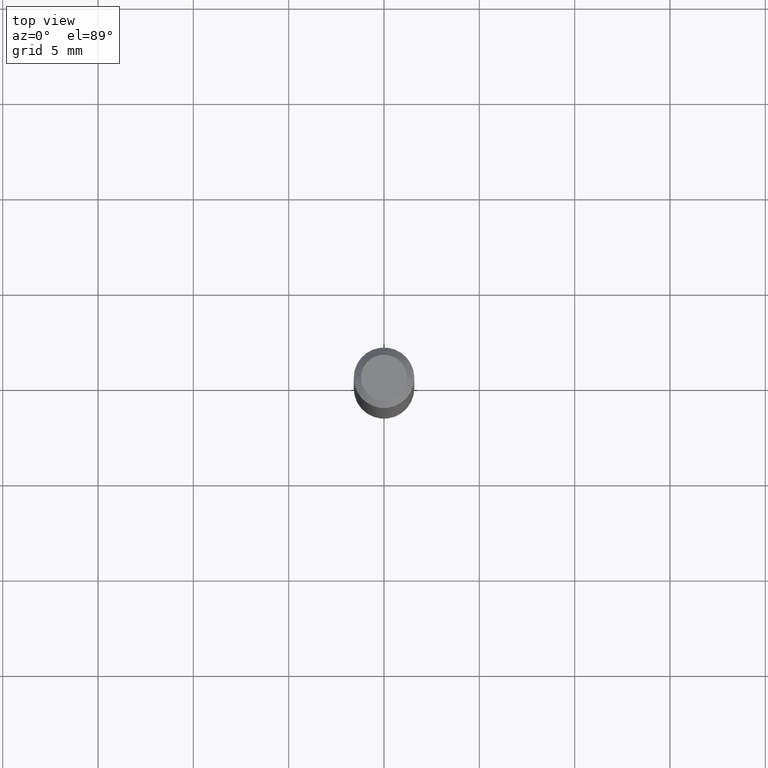
[diagram: clean part render]
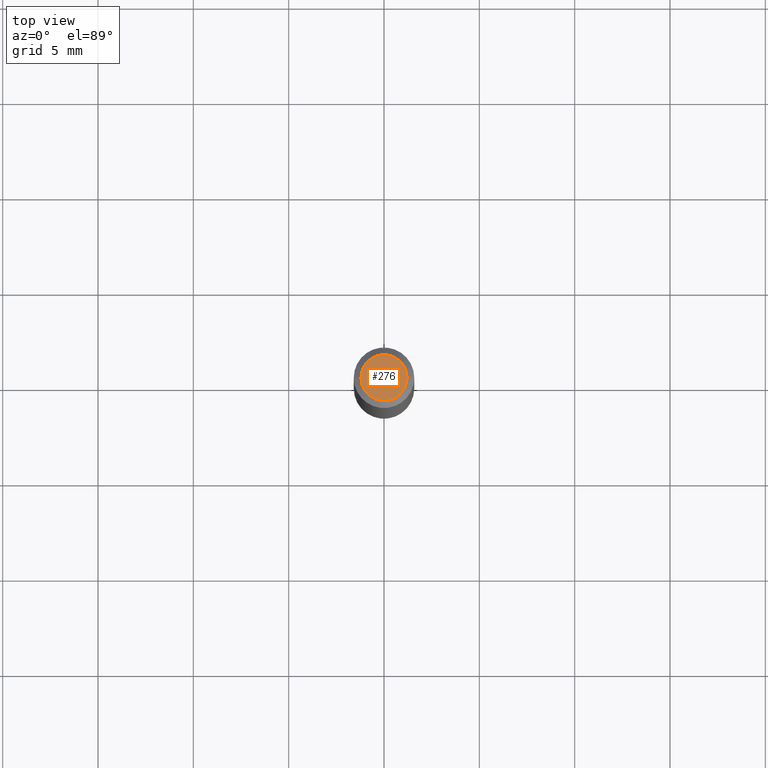
[diagram: same view with one face highlighted and labeled with its STEP entity id]
A machine part, top view. The second image highlights one B-rep face of the part: STEP entity #276.
In plain terms, the highlighted planar face has unit normal (0, -0, -1).
Its self-contained STEP definition (entity closure, byte-faithful):
#10 = DIRECTION ( 'NONE',  ( 1.000000000000000000, -6.982962677686267499E-15, 4.852736867747366768E-29 ) ) ;
#31 = VERTEX_POINT ( 'NONE', #287 ) ;
#32 = ORIENTED_EDGE ( 'NONE', *, *, #341, .T. ) ;
#33 = DIRECTION ( 'NONE',  ( -1.000000000000000000, 6.982962677686265922E-15, -4.876176775795935793E-29 ) ) ;
#50 = CARTESIAN_POINT ( 'NONE',  ( 1.338927666171699620E-44, -1.911633854693045944E-30, -5.475136966724958768E-16 ) ) ;
#87 = DIRECTION ( 'NONE',  ( -2.445468806185136597E-29, 3.491481338843145583E-15, 1.000000000000000000 ) ) ;
#113 = ORIENTED_EDGE ( 'NONE', *, *, #282, .T. ) ;
#114 = CARTESIAN_POINT ( 'NONE',  ( 1.338927666171699620E-44, -1.911633854693045944E-30, -5.475136966724958768E-16 ) ) ;
#121 = AXIS2_PLACEMENT_3D ( 'NONE', #50, #192, #10 ) ;
#146 = CARTESIAN_POINT ( 'NONE',  ( 3.316907271900976096E-16, 0.04749999999999999362, -4.396022119312973841E-16 ) ) ;
#192 = DIRECTION ( 'NONE',  ( -2.445468806185136597E-29, 3.491481338843145583E-15, 1.000000000000000000 ) ) ;
#193 = DIRECTION ( 'NONE',  ( 1.000000000000000000, -6.982962677686267499E-15, 4.852736867747366768E-29 ) ) ;
#225 = CIRCLE ( 'NONE', #269, 0.04749999999999999362 ) ;
#262 = AXIS2_PLACEMENT_3D ( 'NONE', #146, #294, #33 ) ;
#263 = FACE_OUTER_BOUND ( 'NONE', #370, .T. ) ;
#269 = AXIS2_PLACEMENT_3D ( 'NONE', #114, #87, #193 ) ;
#276 = ADVANCED_FACE ( 'NONE', ( #263 ), #357, .F. ) ;
#282 = EDGE_CURVE ( 'NONE', #31, #372, #285, .T. ) ;
#283 = CARTESIAN_POINT ( 'NONE',  ( 0.04749999999999999362, -4.035134999187587991E-16, -5.475136966724933130E-16 ) ) ;
#285 = CIRCLE ( 'NONE', #121, 0.04749999999999999362 ) ;
#287 = CARTESIAN_POINT ( 'NONE',  ( -0.04749999999999999362, 3.578768372314200645E-16, -5.475136966724983420E-16 ) ) ;
#294 = DIRECTION ( 'NONE',  ( 2.438088387897960049E-29, -3.491481338843145188E-15, -1.000000000000000000 ) ) ;
#341 = EDGE_CURVE ( 'NONE', #372, #31, #225, .T. ) ;
#357 = PLANE ( 'NONE',  #262 ) ;
#370 = EDGE_LOOP ( 'NONE', ( #113, #32 ) ) ;
#372 = VERTEX_POINT ( 'NONE', #283 ) ;